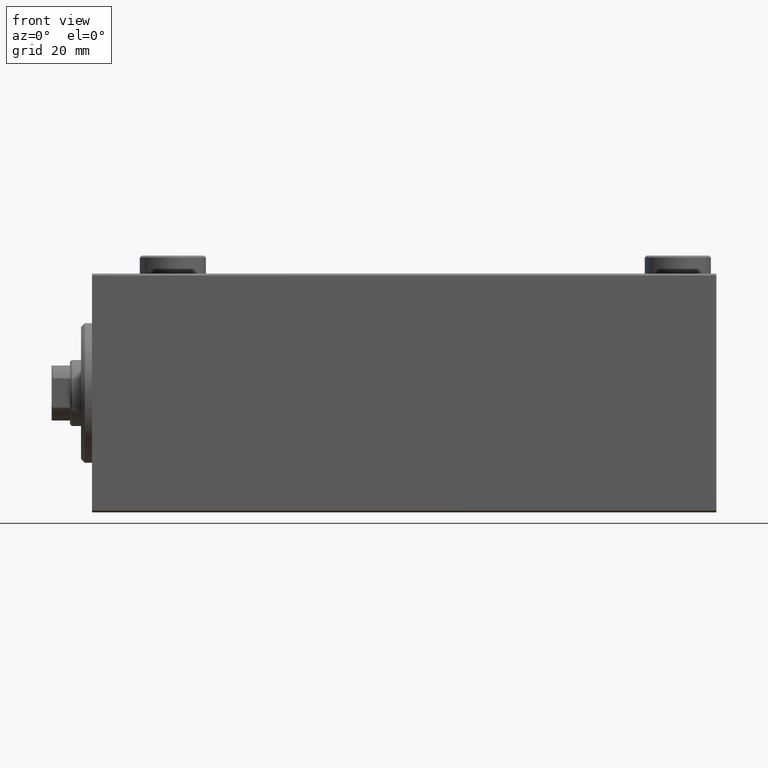
[diagram: clean part render]
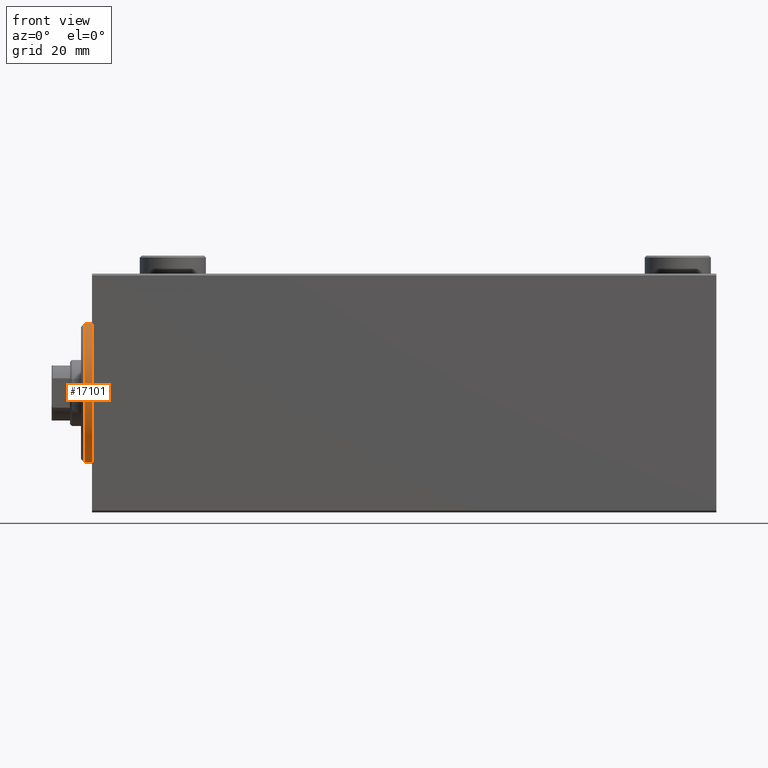
[diagram: same view with one face highlighted and labeled with its STEP entity id]
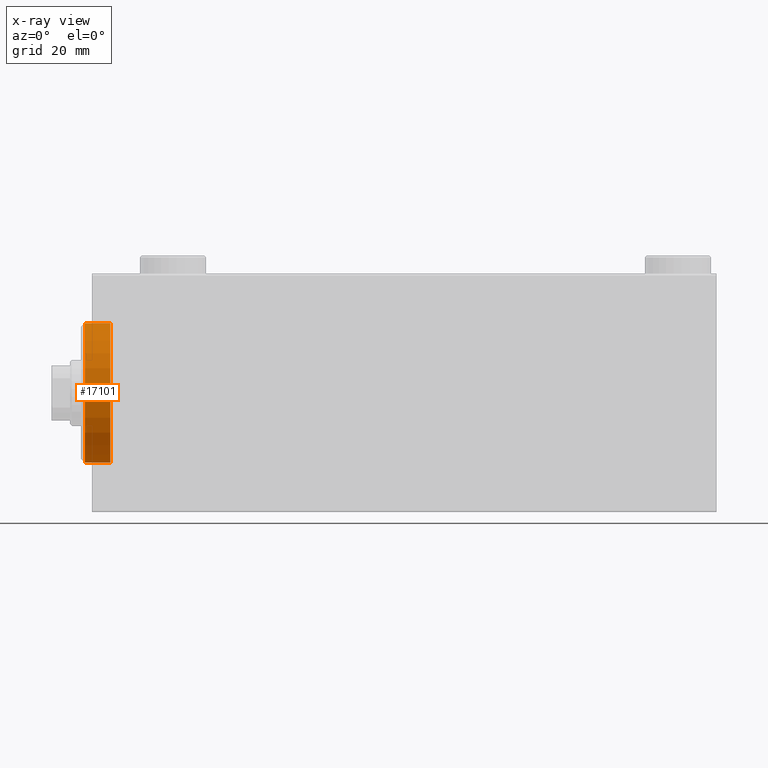
[diagram: x-ray of the same camera — body ghosted, the highlighted face saturated]
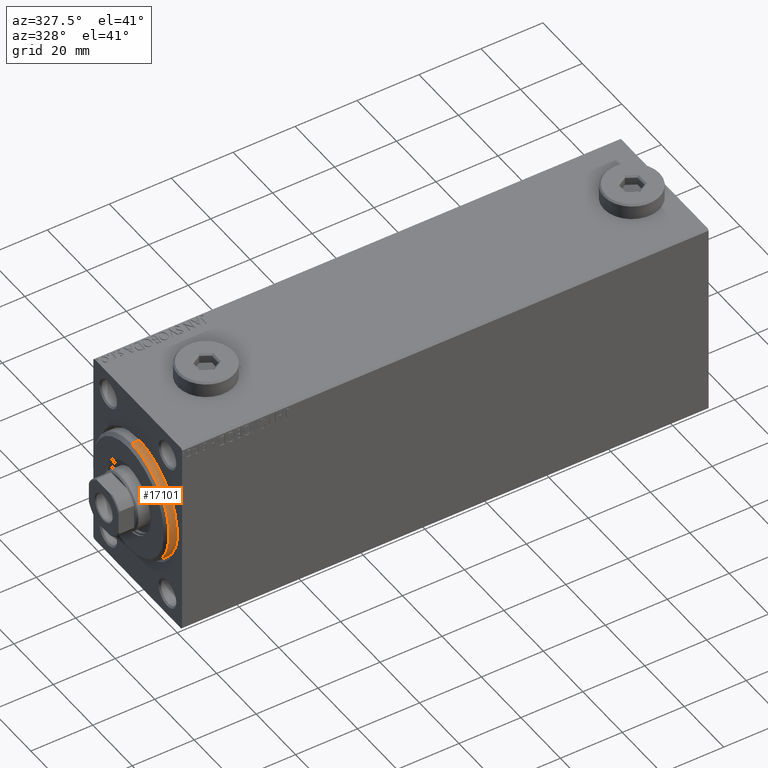
[diagram: same view with one face highlighted and labeled with its STEP entity id]
A machine part, front view. The second image highlights one B-rep face of the part: STEP entity #17101.
The next image is the same camera in x-ray: the body ghosted, the highlighted face saturated — about 1% of this face is hidden behind the body in this view.
A second angle (auxiliary view) of the same face is appended — the face is thin or edge-on in the first view.
In plain terms, the highlighted cylindrical surface (partial cylindrical patch) has radius 19 mm, axis along (1, -0, -0).
Its self-contained STEP definition (entity closure, byte-faithful):
#1090 = DIRECTION ( 'NONE',  ( 0.000000000000000000, 0.000000000000000000, -1.000000000000000000 ) ) ;
#1929 = ORIENTED_EDGE ( 'NONE', *, *, #37149, .F. ) ;
#3619 = AXIS2_PLACEMENT_3D ( 'NONE', #12177, #29680, #1090 ) ;
#9017 = EDGE_CURVE ( 'NONE', #32349, #39366, #11817, .T. ) ;
#11711 = CARTESIAN_POINT ( 'NONE',  ( 3.000000000000000000, 0.000000000000000000, 0.000000000000000000 ) ) ;
#11817 = LINE ( 'NONE', #15733, #22242 ) ;
#12177 = CARTESIAN_POINT ( 'NONE',  ( 1.999999999999992228, 0.000000000000000000, 0.000000000000000000 ) ) ;
#12545 = VERTEX_POINT ( 'NONE', #19177 ) ;
#13402 = CARTESIAN_POINT ( 'NONE',  ( -5.000000000000000000, 2.326828918379970970E-15, -19.00000000000000000 ) ) ;
#15733 = CARTESIAN_POINT ( 'NONE',  ( 3.000000000000000000, 2.326828918379970970E-15, -19.00000000000000000 ) ) ;
#17101 = ADVANCED_FACE ( 'NONE', ( #18609 ), #32686, .T. ) ;
#17401 = DIRECTION ( 'NONE',  ( 0.000000000000000000, 0.000000000000000000, 1.000000000000000000 ) ) ;
#18159 = EDGE_CURVE ( 'NONE', #26373, #12545, #23377, .T. ) ;
#18609 = FACE_OUTER_BOUND ( 'NONE', #43105, .T. ) ;
#19177 = CARTESIAN_POINT ( 'NONE',  ( -5.000000000000000000, 0.000000000000000000, 19.00000000000000000 ) ) ;
#20193 = CARTESIAN_POINT ( 'NONE',  ( -5.000000000000000000, 0.000000000000000000, 0.000000000000000000 ) ) ;
#22242 = VECTOR ( 'NONE', #26100, 1000.000000000000000 ) ;
#22302 = DIRECTION ( 'NONE',  ( -1.000000000000000000, -0.000000000000000000, -0.000000000000000000 ) ) ;
#23264 = ORIENTED_EDGE ( 'NONE', *, *, #34359, .T. ) ;
#23377 = LINE ( 'NONE', #29605, #29076 ) ;
#23668 = CIRCLE ( 'NONE', #34719, 19.00000000000000000 ) ;
#24613 = AXIS2_PLACEMENT_3D ( 'NONE', #11711, #22302, #32915 ) ;
#26100 = DIRECTION ( 'NONE',  ( -1.000000000000000000, -0.000000000000000000, -0.000000000000000000 ) ) ;
#26373 = VERTEX_POINT ( 'NONE', #27893 ) ;
#27893 = CARTESIAN_POINT ( 'NONE',  ( 1.999999999999992228, 0.000000000000000000, 19.00000000000000000 ) ) ;
#29076 = VECTOR ( 'NONE', #37442, 1000.000000000000000 ) ;
#29605 = CARTESIAN_POINT ( 'NONE',  ( 3.000000000000000000, 0.000000000000000000, 19.00000000000000000 ) ) ;
#29680 = DIRECTION ( 'NONE',  ( -1.000000000000000000, 0.000000000000000000, 0.000000000000000000 ) ) ;
#30133 = ORIENTED_EDGE ( 'NONE', *, *, #9017, .T. ) ;
#32349 = VERTEX_POINT ( 'NONE', #44237 ) ;
#32686 = CYLINDRICAL_SURFACE ( 'NONE', #24613, 19.00000000000000000 ) ;
#32915 = DIRECTION ( 'NONE',  ( 0.000000000000000000, 0.000000000000000000, 1.000000000000000000 ) ) ;
#34197 = ORIENTED_EDGE ( 'NONE', *, *, #18159, .F. ) ;
#34359 = EDGE_CURVE ( 'NONE', #26373, #32349, #35263, .T. ) ;
#34719 = AXIS2_PLACEMENT_3D ( 'NONE', #20193, #38616, #17401 ) ;
#35263 = CIRCLE ( 'NONE', #3619, 19.00000000000000000 ) ;
#37149 = EDGE_CURVE ( 'NONE', #12545, #39366, #23668, .T. ) ;
#37442 = DIRECTION ( 'NONE',  ( -1.000000000000000000, -0.000000000000000000, -0.000000000000000000 ) ) ;
#38616 = DIRECTION ( 'NONE',  ( -1.000000000000000000, 0.000000000000000000, 0.000000000000000000 ) ) ;
#39366 = VERTEX_POINT ( 'NONE', #13402 ) ;
#43105 = EDGE_LOOP ( 'NONE', ( #23264, #30133, #1929, #34197 ) ) ;
#44237 = CARTESIAN_POINT ( 'NONE',  ( 1.999999999999992228, 2.326828918379970970E-15, -19.00000000000000000 ) ) ;